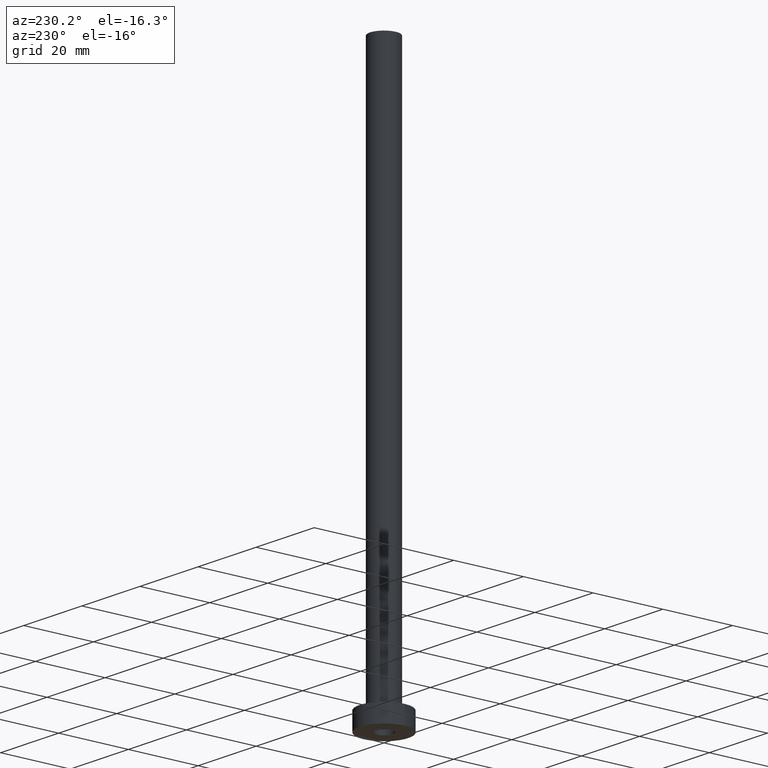
[diagram: clean part render]
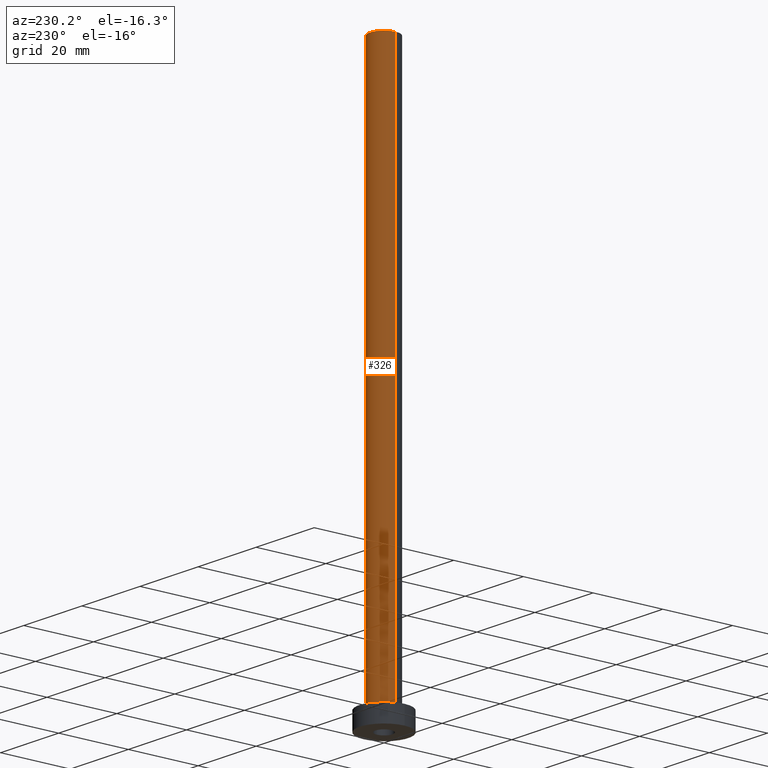
[diagram: same view with one face highlighted and labeled with its STEP entity id]
A machine part, auxiliary view. The second image highlights one B-rep face of the part: STEP entity #326.
In plain terms, the highlighted cylindrical surface (edge-blend (fillet) strip) has radius 4 mm, axis along (-0, -0, -1).
Its self-contained STEP definition (entity closure, byte-faithful):
#7 = FACE_OUTER_BOUND ( 'NONE', #78, .T. ) ;
#19 = CARTESIAN_POINT ( 'NONE',  ( 4.000000000000000000, 4.898587196589412829E-16, 5.500000000000005329 ) ) ;
#25 = VERTEX_POINT ( 'NONE', #293 ) ;
#27 = DIRECTION ( 'NONE',  ( -0.000000000000000000, -0.000000000000000000, -1.000000000000000000 ) ) ;
#66 = DIRECTION ( 'NONE',  ( -0.000000000000000000, -0.000000000000000000, -1.000000000000000000 ) ) ;
#77 = EDGE_CURVE ( 'NONE', #403, #298, #332, .T. ) ;
#78 = EDGE_LOOP ( 'NONE', ( #158, #132, #400, #206 ) ) ;
#85 = VECTOR ( 'NONE', #66, 1000.000000000000000 ) ;
#87 = DIRECTION ( 'NONE',  ( 1.000000000000000000, 0.000000000000000000, 0.000000000000000000 ) ) ;
#92 = CIRCLE ( 'NONE', #459, 4.000000000000000000 ) ;
#99 = EDGE_CURVE ( 'NONE', #239, #25, #92, .T. ) ;
#100 = DIRECTION ( 'NONE',  ( 1.000000000000000000, 0.000000000000000000, 0.000000000000000000 ) ) ;
#132 = ORIENTED_EDGE ( 'NONE', *, *, #425, .T. ) ;
#158 = ORIENTED_EDGE ( 'NONE', *, *, #77, .F. ) ;
#165 = CARTESIAN_POINT ( 'NONE',  ( 0.000000000000000000, 0.000000000000000000, 160.0000000000000000 ) ) ;
#170 = CARTESIAN_POINT ( 'NONE',  ( -4.000000000000000000, 0.000000000000000000, 160.0000000000000000 ) ) ;
#188 = DIRECTION ( 'NONE',  ( 0.000000000000000000, 0.000000000000000000, 1.000000000000000000 ) ) ;
#206 = ORIENTED_EDGE ( 'NONE', *, *, #375, .F. ) ;
#224 = CARTESIAN_POINT ( 'NONE',  ( 0.000000000000000000, 0.000000000000000000, 5.500000000000005329 ) ) ;
#239 = VERTEX_POINT ( 'NONE', #19 ) ;
#243 = LINE ( 'NONE', #170, #305 ) ;
#263 = CARTESIAN_POINT ( 'NONE',  ( 0.000000000000000000, 0.000000000000000000, 160.0000000000000000 ) ) ;
#265 = DIRECTION ( 'NONE',  ( -0.000000000000000000, -0.000000000000000000, -1.000000000000000000 ) ) ;
#269 = DIRECTION ( 'NONE',  ( 0.000000000000000000, 0.000000000000000000, 1.000000000000000000 ) ) ;
#287 = LINE ( 'NONE', #391, #85 ) ;
#293 = CARTESIAN_POINT ( 'NONE',  ( -4.000000000000000000, 0.000000000000000000, 5.500000000000005329 ) ) ;
#298 = VERTEX_POINT ( 'NONE', #325 ) ;
#305 = VECTOR ( 'NONE', #27, 1000.000000000000000 ) ;
#314 = AXIS2_PLACEMENT_3D ( 'NONE', #165, #265, #402 ) ;
#325 = CARTESIAN_POINT ( 'NONE',  ( -4.000000000000000000, 0.000000000000000000, 160.0000000000000000 ) ) ;
#326 = ADVANCED_FACE ( 'NONE', ( #7 ), #340, .T. ) ;
#332 = CIRCLE ( 'NONE', #370, 4.000000000000000000 ) ;
#340 = CYLINDRICAL_SURFACE ( 'NONE', #314, 4.000000000000000000 ) ;
#370 = AXIS2_PLACEMENT_3D ( 'NONE', #263, #269, #87 ) ;
#375 = EDGE_CURVE ( 'NONE', #298, #25, #243, .T. ) ;
#391 = CARTESIAN_POINT ( 'NONE',  ( 4.000000000000000000, 4.898587196589412829E-16, 160.0000000000000000 ) ) ;
#400 = ORIENTED_EDGE ( 'NONE', *, *, #99, .T. ) ;
#402 = DIRECTION ( 'NONE',  ( -1.000000000000000000, 0.000000000000000000, 0.000000000000000000 ) ) ;
#403 = VERTEX_POINT ( 'NONE', #422 ) ;
#422 = CARTESIAN_POINT ( 'NONE',  ( 4.000000000000000000, 4.898587196589412829E-16, 160.0000000000000000 ) ) ;
#425 = EDGE_CURVE ( 'NONE', #403, #239, #287, .T. ) ;
#459 = AXIS2_PLACEMENT_3D ( 'NONE', #224, #188, #100 ) ;